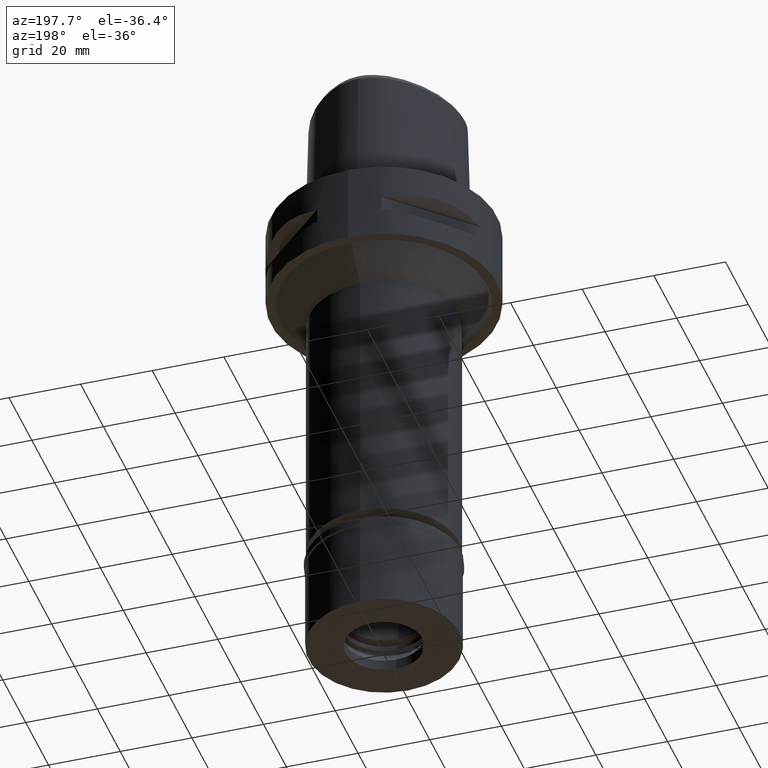
[diagram: clean part render]
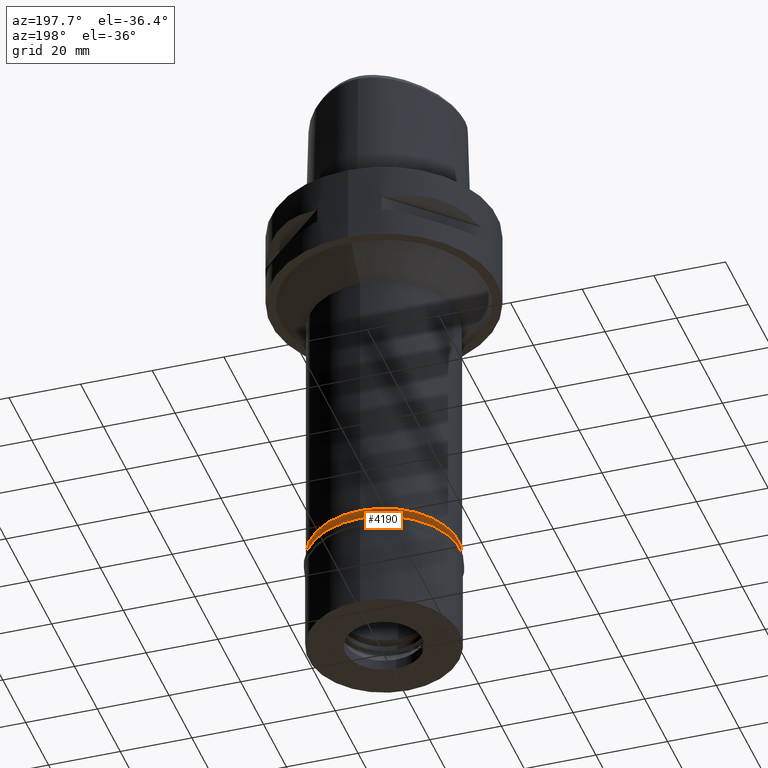
[diagram: same view with one face highlighted and labeled with its STEP entity id]
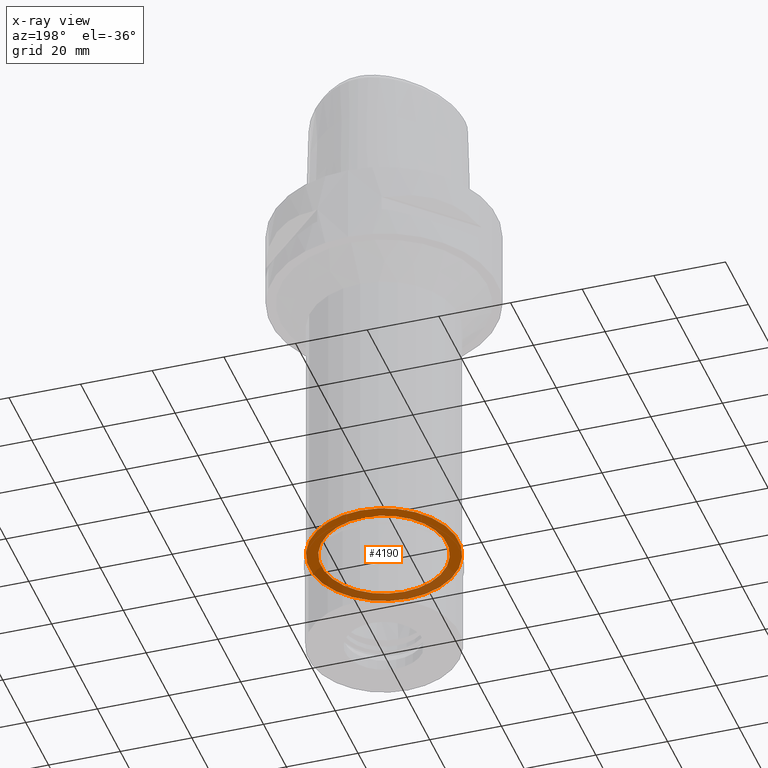
[diagram: x-ray of the same camera — body ghosted, the highlighted face saturated]
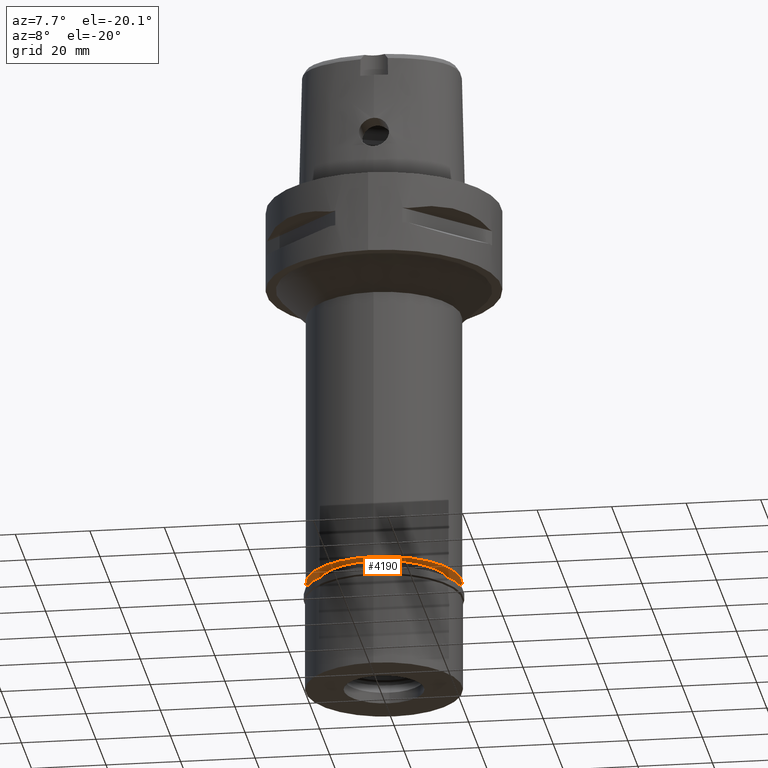
[diagram: same view with one face highlighted and labeled with its STEP entity id]
A machine part, auxiliary view. The second image highlights one B-rep face of the part: STEP entity #4190.
The next image is the same camera in x-ray: the body ghosted, the highlighted face saturated — about 38% of this face is hidden behind the body in this view.
A second angle (auxiliary view) of the same face is appended — the face is thin or edge-on in the first view.
In plain terms, the highlighted planar face has unit normal (0, 0, -1).
Its self-contained STEP definition (entity closure, byte-faithful):
#376 = AXIS2_PLACEMENT_3D ( 'NONE', #2513, #3206, #994 ) ;
#429 = EDGE_LOOP ( 'NONE', ( #905, #2898 ) ) ;
#723 = CARTESIAN_POINT ( 'NONE',  ( 0.0000000000000000000, 17.50000000000000000, -104.8999999999999915 ) ) ;
#823 = VERTEX_POINT ( 'NONE', #723 ) ;
#871 = DIRECTION ( 'NONE',  ( 0.0000000000000000000, 0.0000000000000000000, -1.000000000000000000 ) ) ;
#905 = ORIENTED_EDGE ( 'NONE', *, *, #1466, .F. ) ;
#994 = DIRECTION ( 'NONE',  ( 0.0000000000000000000, -1.000000000000000000, 0.0000000000000000000 ) ) ;
#1028 = CARTESIAN_POINT ( 'NONE',  ( 0.0000000000000000000, -17.50000000000000000, -104.8999999999999915 ) ) ;
#1274 = AXIS2_PLACEMENT_3D ( 'NONE', #1635, #3915, #3169 ) ;
#1323 = ORIENTED_EDGE ( 'NONE', *, *, #2284, .F. ) ;
#1360 = DIRECTION ( 'NONE',  ( 0.0000000000000000000, 1.000000000000000000, 0.0000000000000000000 ) ) ;
#1466 = EDGE_CURVE ( 'NONE', #2054, #2153, #3846, .T. ) ;
#1489 = EDGE_LOOP ( 'NONE', ( #1323, #1975 ) ) ;
#1635 = CARTESIAN_POINT ( 'NONE',  ( 0.0000000000000000000, 0.0000000000000000000, -104.8999999999999915 ) ) ;
#1676 = PLANE ( 'NONE',  #376 ) ;
#1892 = EDGE_CURVE ( 'NONE', #2153, #2054, #4383, .T. ) ;
#1907 = CARTESIAN_POINT ( 'NONE',  ( 0.0000000000000000000, 0.0000000000000000000, -104.8999999999999915 ) ) ;
#1975 = ORIENTED_EDGE ( 'NONE', *, *, #1996, .F. ) ;
#1996 = EDGE_CURVE ( 'NONE', #3934, #823, #2002, .T. ) ;
#2002 = CIRCLE ( 'NONE', #4793, 17.50000000000000000 ) ;
#2054 = VERTEX_POINT ( 'NONE', #4523 ) ;
#2153 = VERTEX_POINT ( 'NONE', #4200 ) ;
#2284 = EDGE_CURVE ( 'NONE', #823, #3934, #3921, .T. ) ;
#2421 = AXIS2_PLACEMENT_3D ( 'NONE', #1907, #871, #2809 ) ;
#2513 = CARTESIAN_POINT ( 'NONE',  ( 0.0000000000000000000, -1.284654492305999992E-14, -104.8999999999999915 ) ) ;
#2809 = DIRECTION ( 'NONE',  ( 0.0000000000000000000, 1.000000000000000000, 0.0000000000000000000 ) ) ;
#2898 = ORIENTED_EDGE ( 'NONE', *, *, #1892, .F. ) ;
#3169 = DIRECTION ( 'NONE',  ( 0.0000000000000000000, -1.000000000000000000, 0.0000000000000000000 ) ) ;
#3206 = DIRECTION ( 'NONE',  ( 0.0000000000000000000, 0.0000000000000000000, -1.000000000000000000 ) ) ;
#3283 = CARTESIAN_POINT ( 'NONE',  ( 0.0000000000000000000, 0.0000000000000000000, -104.8999999999999915 ) ) ;
#3314 = DIRECTION ( 'NONE',  ( 0.0000000000000000000, -1.000000000000000000, 0.0000000000000000000 ) ) ;
#3585 = FACE_OUTER_BOUND ( 'NONE', #429, .T. ) ;
#3611 = FACE_BOUND ( 'NONE', #1489, .T. ) ;
#3651 = DIRECTION ( 'NONE',  ( 0.0000000000000000000, 0.0000000000000000000, 1.000000000000000000 ) ) ;
#3769 = AXIS2_PLACEMENT_3D ( 'NONE', #4790, #3651, #1360 ) ;
#3846 = CIRCLE ( 'NONE', #3769, 20.80000000000000071 ) ;
#3915 = DIRECTION ( 'NONE',  ( 0.0000000000000000000, 0.0000000000000000000, 1.000000000000000000 ) ) ;
#3921 = CIRCLE ( 'NONE', #2421, 17.50000000000000000 ) ;
#3934 = VERTEX_POINT ( 'NONE', #1028 ) ;
#4050 = DIRECTION ( 'NONE',  ( 0.0000000000000000000, 0.0000000000000000000, -1.000000000000000000 ) ) ;
#4190 = ADVANCED_FACE ( 'NONE', ( #3585, #3611 ), #1676, .T. ) ;
#4200 = CARTESIAN_POINT ( 'NONE',  ( 0.0000000000000000000, -20.80000000000000071, -104.8999999999999915 ) ) ;
#4383 = CIRCLE ( 'NONE', #1274, 20.80000000000000071 ) ;
#4523 = CARTESIAN_POINT ( 'NONE',  ( 0.0000000000000000000, 20.80000000000000071, -104.8999999999999915 ) ) ;
#4790 = CARTESIAN_POINT ( 'NONE',  ( 0.0000000000000000000, 0.0000000000000000000, -104.8999999999999915 ) ) ;
#4793 = AXIS2_PLACEMENT_3D ( 'NONE', #3283, #4050, #3314 ) ;